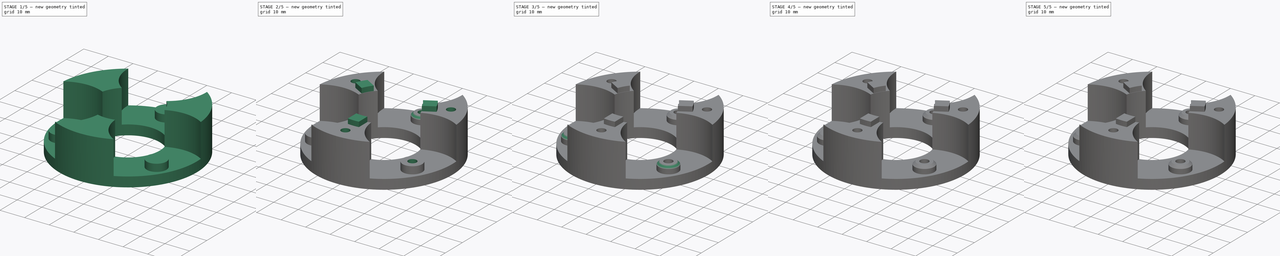
[diagram: build sequence overview — one tinted view per stage of 5, left to right]
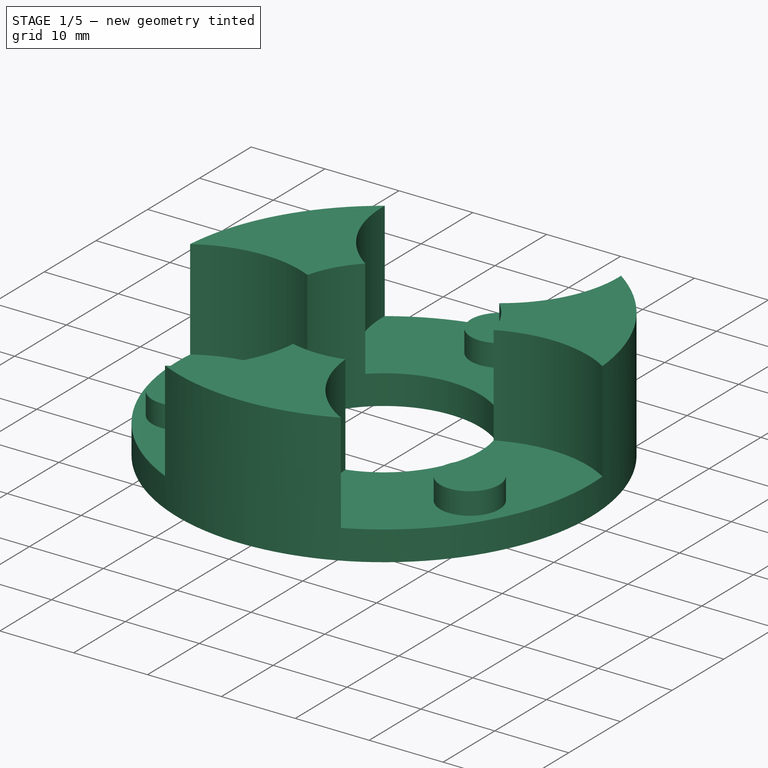
[diagram: stage 1 of 5 — iso view after this stage's code; geometry added in this stage tinted green]
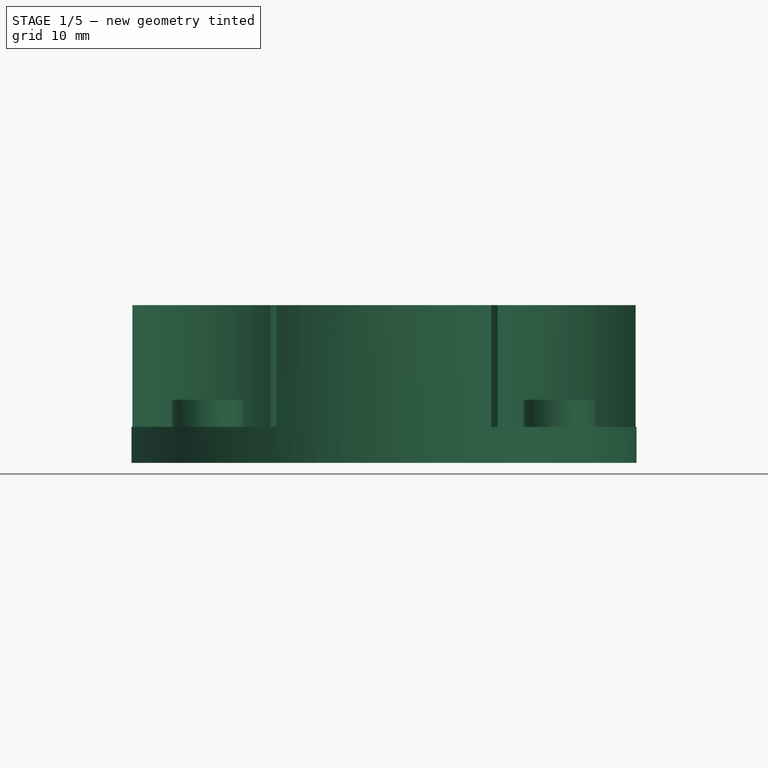
[diagram: stage 1 of 5 — front view after this stage's code; geometry added in this stage tinted green]
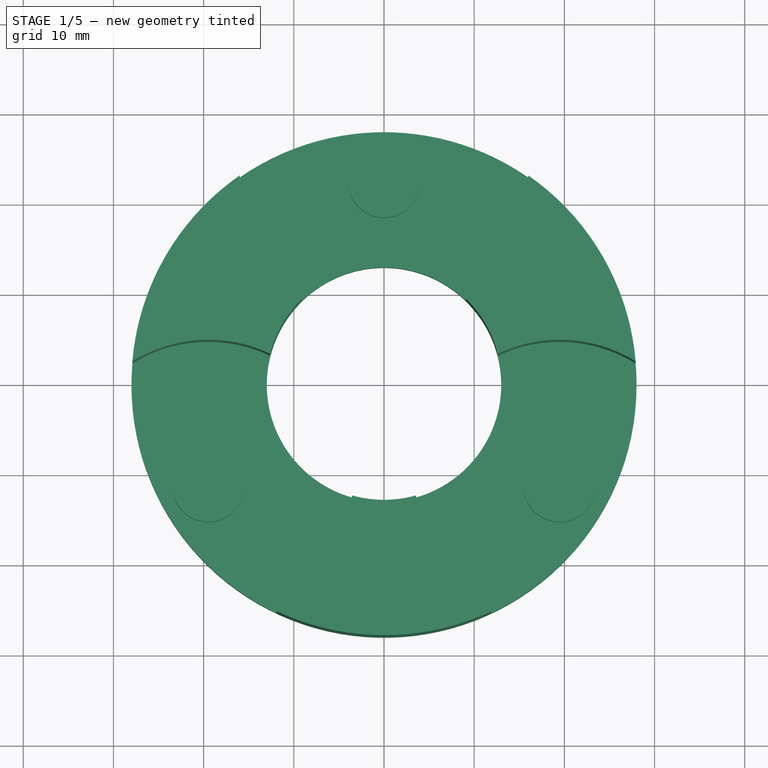
[diagram: stage 1 of 5 — top view after this stage's code; geometry added in this stage tinted green]
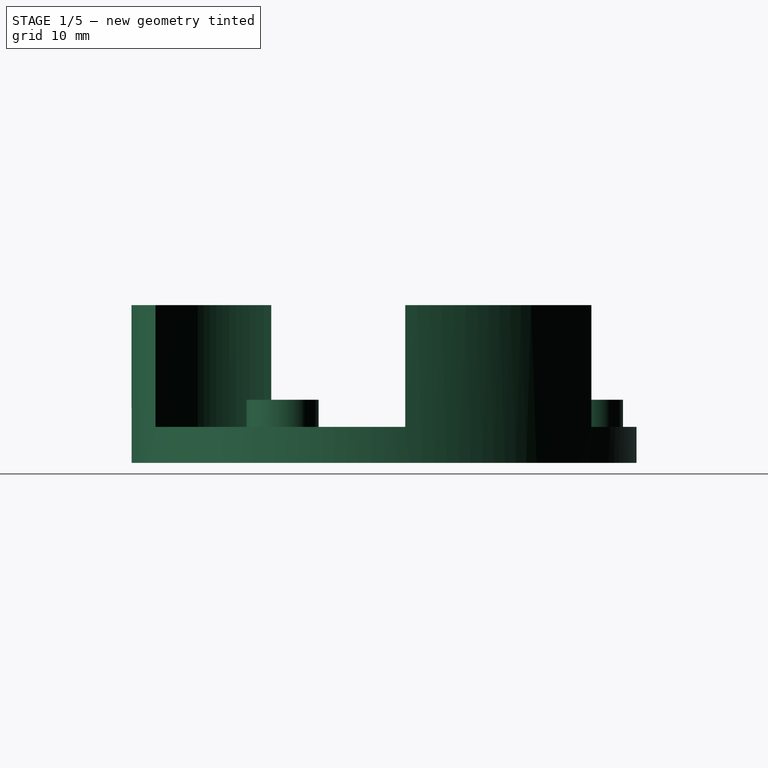
[diagram: stage 1 of 5 — right view after this stage's code; geometry added in this stage tinted green]
FCSTD DOCUMENT  (FreeCAD 0.16R6705 (Git))
Label: CarrierB
License: All rights reserved
LicenseURL: http://en.wikipedia.org/wiki/All_rights_reserved
objects: PartDesign::Chamfer×9, Sketcher::SketchObject×6, PartDesign::Pad×3, PartDesign::Pocket×3, PartDesign::PolarPattern×2
note: 29 computed .brp shape members not serialized (recipe doc carries the construction recipe); baked Part::Feature solids carry a one-line shape summary decoded from their .brp

FEATURE [Sketcher::SketchObject] Sketch005
  sketch-geometry (12):
    g0: Circle [constr] CenterX=0 CenterY=0 CenterZ=0 NormalX=0 NormalY=0 NormalZ=1 Radius=22.5
    g1: LineSegment [constr] StartX=0 StartY=0 StartZ=0 EndX=-19.4856 EndY=-11.25 EndZ=0
    g2: LineSegment [constr] StartX=0 StartY=0 StartZ=0 EndX=19.4856 EndY=-11.25 EndZ=0
    g3: LineSegment [constr] StartX=0 StartY=0 StartZ=0 EndX=0 EndY=22.5 EndZ=0
    g4: Circle [constr] CenterX=0 CenterY=22.5 CenterZ=0 NormalX=0 NormalY=0 NormalZ=1 Radius=1.6
    g5: Circle [constr] CenterX=-19.4856 CenterY=-11.25 CenterZ=0 NormalX=0 NormalY=0 NormalZ=1 Radius=1.6
    g6: Circle [constr] CenterX=19.4856 CenterY=-11.25 CenterZ=0 NormalX=0 NormalY=0 NormalZ=1 Radius=1.6
    g7: Circle CenterX=0 CenterY=0 CenterZ=0 NormalX=0 NormalY=0 NormalZ=1 Radius=13
    g8: Circle CenterX=0 CenterY=0 CenterZ=0 NormalX=0 NormalY=0 NormalZ=1 Radius=28
    g9: LineSegment [constr] StartX=0 StartY=0 StartZ=0 EndX=-24.2487 EndY=14 EndZ=0
    g10: LineSegment [constr] StartX=0 StartY=0 StartZ=0 EndX=24.2487 EndY=14 EndZ=0
    g11: LineSegment [constr] StartX=0 StartY=0 StartZ=0 EndX=0 EndY=-28 EndZ=0
  constraints (30):
    c: Coincident(g0,g-1)
    c: Radius(g0) = 22.5
    c: Coincident(g1,g-1)
    c: PointOnObject(g1,g0)
    c: Coincident(g2,g-1)
    c: PointOnObject(g2,g0)
    c: Angle(g1,g2) = 2.0944
    c: Coincident(g3,g-1)
    c: PointOnObject(g3,g0)
    c: Vertical(g3)
    c: Angle(g2,g3) = 2.0944
    c: Coincident(g4,g3)
    c: Coincident(g5,g1)
    c: Coincident(g6,g2)
    c: Coincident(g7,g-1)
    c: Radius(g6) = 1.6
    c: Equal(g6,g4)
    c: Equal(g6,g5)
    c: Radius(g7) = 13
    c: Radius(g8) = 28
    c: Coincident(g9,g-1)
    c: PointOnObject(g9,g8)
    c: Coincident(g8,g-1)
    c: Coincident(g10,g-1)
    c: PointOnObject(g10,g8)
    c: Coincident(g11,g-1)
    c: PointOnObject(g11,g8)
    c: Angle(g11,g10) = 2.0944
    c: Angle(g9,g11) = 2.0944
    c: Vertical(g11)
FEATURE [PartDesign::Pad] Pad002
  Length = 17.5
  Length2 = 100
  Sketch = -> Sketch005
  Type = 0
FEATURE [Sketcher::SketchObject] Sketch007  label="GearCutOut"
  Placement = pos=(0,0,17.5) rot=(0,0,1;0rad)
  Support = -> Pad002 [Face4]
  sketch-geometry (12):
    g0: Circle [constr] CenterX=0 CenterY=0 CenterZ=0 NormalX=0 NormalY=0 NormalZ=1 Radius=22.5
    g1: LineSegment [constr] StartX=0 StartY=0 StartZ=0 EndX=-19.4856 EndY=-11.25 EndZ=0
    g2: LineSegment [constr] StartX=0 StartY=0 StartZ=0 EndX=19.4856 EndY=-11.25 EndZ=0
    g3: LineSegment [constr] StartX=0 StartY=0 StartZ=0 EndX=0 EndY=22.5 EndZ=0
    g4: Circle CenterX=0 CenterY=22.5 CenterZ=0 NormalX=0 NormalY=0 NormalZ=1 Radius=16
    g5: Circle CenterX=-19.4856 CenterY=-11.25 CenterZ=0 NormalX=0 NormalY=0 NormalZ=1 Radius=16
    g6: Circle CenterX=19.4856 CenterY=-11.25 CenterZ=0 NormalX=0 NormalY=0 NormalZ=1 Radius=16
    g7: Circle [constr] CenterX=0 CenterY=0 CenterZ=0 NormalX=0 NormalY=0 NormalZ=1 Radius=14
    g8: Circle [constr] CenterX=0 CenterY=0 CenterZ=0 NormalX=0 NormalY=0 NormalZ=1 Radius=28
    g9: LineSegment [constr] StartX=0 StartY=0 StartZ=0 EndX=-24.2487 EndY=14 EndZ=0
    g10: LineSegment [constr] StartX=0 StartY=0 StartZ=0 EndX=24.2487 EndY=14 EndZ=0
    g11: LineSegment [constr] StartX=0 StartY=0 StartZ=0 EndX=0 EndY=-28 EndZ=0
  constraints (30):
    c: Coincident(g0,g-1)
    c: Radius(g0) = 22.5
    c: Coincident(g1,g-1)
    c: PointOnObject(g1,g0)
    c: Coincident(g2,g-1)
    c: PointOnObject(g2,g0)
    c: Angle(g1,g2) = 2.0944
    c: Coincident(g3,g-1)
    c: PointOnObject(g3,g0)
    c: Vertical(g3)
    c: Angle(g2,g3) = 2.0944
    c: Coincident(g4,g3)
    c: Coincident(g5,g1)
    c: Coincident(g6,g2)
    c: Coincident(g7,g-1)
    c: Radius(g6) = 16
    c: Equal(g6,g4)
    c: Equal(g6,g5)
    c: Radius(g7) = 14
    c: Radius(g8) = 28
    c: Coincident(g9,g-1)
    c: PointOnObject(g9,g8)
    c: Coincident(g8,g-1)
    c: Coincident(g10,g-1)
    c: PointOnObject(g10,g8)
    c: Coincident(g11,g-1)
    c: PointOnObject(g11,g8)
    c: Angle(g11,g10) = 2.0944
    c: Angle(g9,g11) = 2.0944
    c: Vertical(g11)
FEATURE [PartDesign::Pocket] Pocket003
  Length = 13.5
  Sketch = -> Sketch007
  Type = 0
FEATURE [Sketcher::SketchObject] Sketch006  label="BearingSupport"
  Placement = pos=(0,0,4) rot=(0,0,1;0rad)
  Support = -> Pocket003 [Face11]
  sketch-geometry (10):
    g0: Circle [constr] CenterX=0 CenterY=0 CenterZ=0 NormalX=0 NormalY=0 NormalZ=1 Radius=22.5
    g1: LineSegment [constr] StartX=0 StartY=0 StartZ=0 EndX=0 EndY=22.5 EndZ=0
    g2: LineSegment [constr] StartX=0 StartY=0 StartZ=0 EndX=-19.4856 EndY=-11.25 EndZ=0
    g3: LineSegment [constr] StartX=19.4856 StartY=-11.25 StartZ=0 EndX=0 EndY=0 EndZ=0
    g4: Circle CenterX=0 CenterY=22.5 CenterZ=0 NormalX=0 NormalY=0 NormalZ=1 Radius=4
    g5: Circle [constr] CenterX=0 CenterY=22.5 CenterZ=0 NormalX=0 NormalY=0 NormalZ=1 Radius=1.6
    g6: Circle CenterX=-19.4856 CenterY=-11.25 CenterZ=0 NormalX=0 NormalY=0 NormalZ=1 Radius=4
    g7: Circle [constr] CenterX=-19.4856 CenterY=-11.25 CenterZ=0 NormalX=0 NormalY=0 NormalZ=1 Radius=1.6
    g8: Circle [constr] CenterX=19.4856 CenterY=-11.25 CenterZ=0 NormalX=0 NormalY=0 NormalZ=1 Radius=1.6
    g9: Circle CenterX=19.4856 CenterY=-11.25 CenterZ=0 NormalX=0 NormalY=0 NormalZ=1 Radius=4
  constraints (23):
    c: Coincident(g0,g-1)
    c: Radius(g0) = 22.5
    c: Coincident(g1,g-1)
    c: Vertical(g1)
    c: PointOnObject(g2,g0)
    c: PointOnObject(g3,g0)
    c: Coincident(g3,g-1)
    c: Angle(g2,g3) = 2.0944
    c: Angle(g3,g1) = 2.0944
    c: Coincident(g4,g1)
    c: Coincident(g5,g1)
    c: Radius(g5) = 1.6
    c: Radius(g4) = 4
    c: Coincident(g6,g2)
    c: Radius(g6) = 4
    c: Coincident(g7,g2)
    c: Radius(g7) = 1.6
    c: Coincident(g8,g3)
    c: Radius(g8) = 1.6
    c: Coincident(g9,g3)
    c: Radius(g9) = 4
    c: PointOnObject(g1,g0)
    c: Coincident(g2,g-1)
FEATURE [PartDesign::Pad] Pad003
  Length = 3
  Length2 = 100
  Sketch = -> Sketch006
  Type = 0
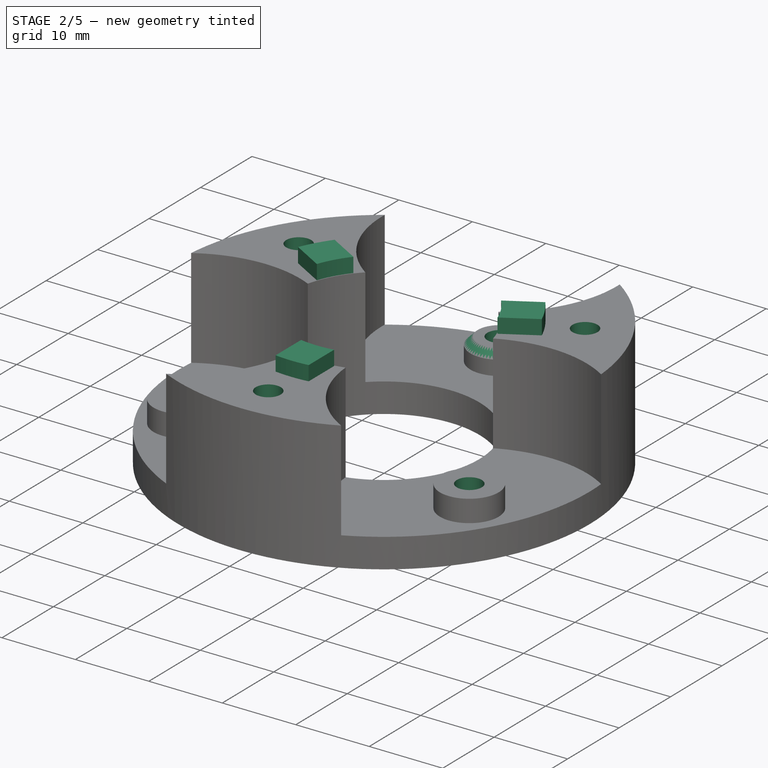
[diagram: stage 2 of 5 — iso view after this stage's code; geometry added in this stage tinted green]
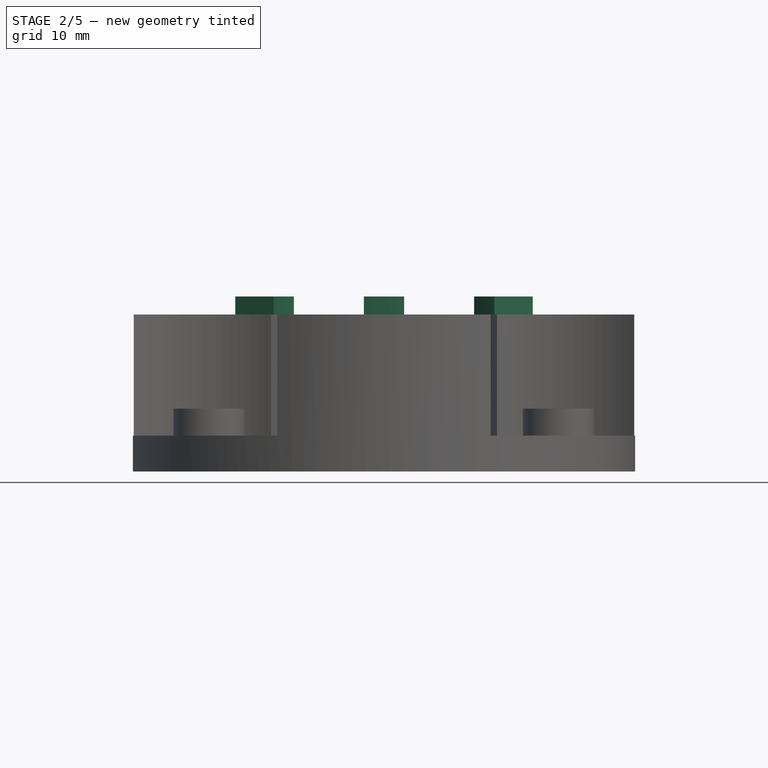
[diagram: stage 2 of 5 — front view after this stage's code; geometry added in this stage tinted green]
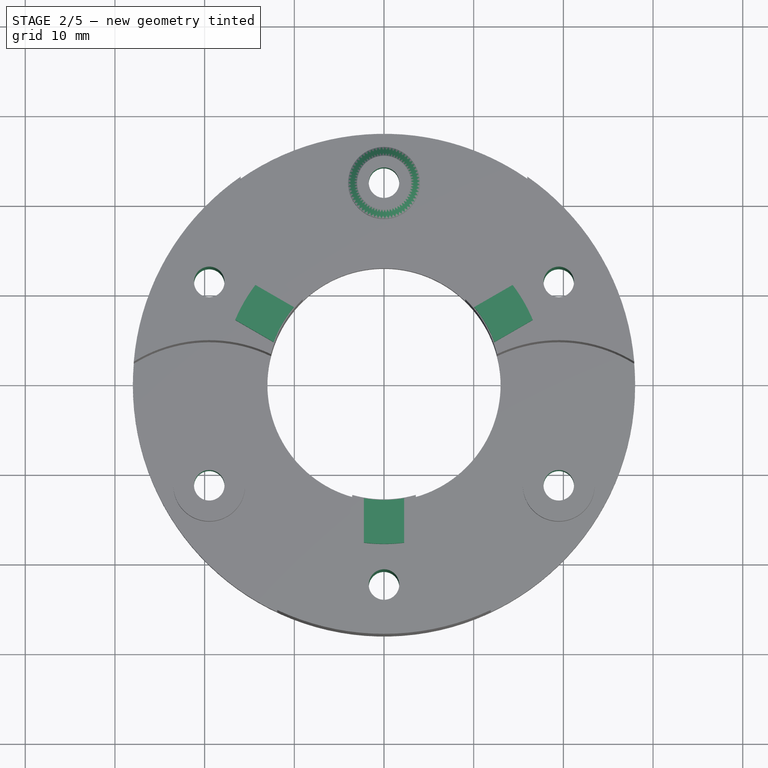
[diagram: stage 2 of 5 — top view after this stage's code; geometry added in this stage tinted green]
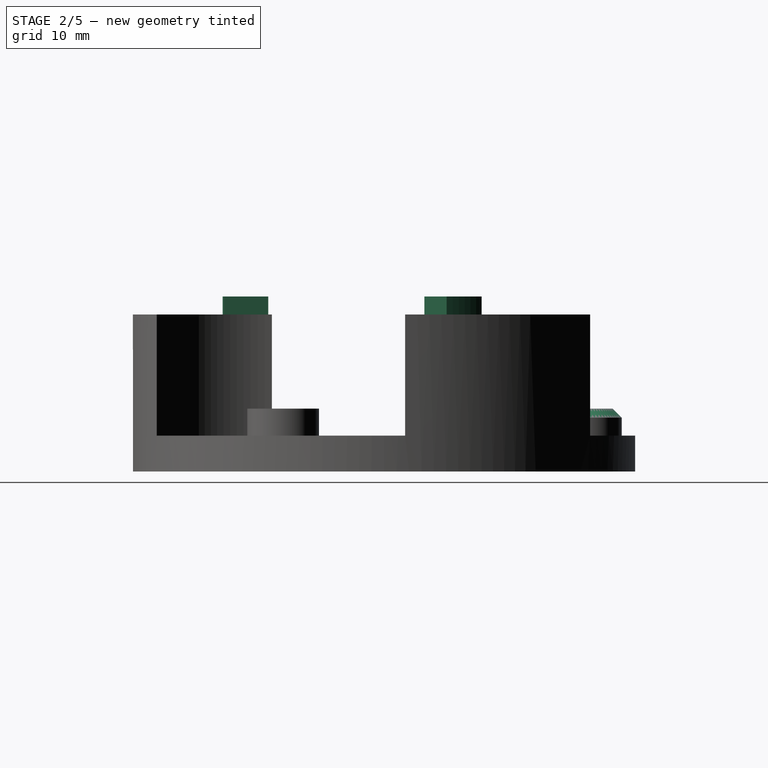
[diagram: stage 2 of 5 — right view after this stage's code; geometry added in this stage tinted green]
FEATURE [Sketcher::SketchObject] Sketch008  label="ScrewHoles"
  Placement = pos=(0,0,17.5) rot=(0,0,1;0rad)
  Support = -> Pad003 [Face9]
  sketch-geometry (18):
    g0: Circle [constr] CenterX=0 CenterY=0 CenterZ=0 NormalX=0 NormalY=0 NormalZ=1 Radius=22.5
    g1: LineSegment [constr] StartX=0 StartY=0 StartZ=0 EndX=-19.4856 EndY=-11.25 EndZ=0
    g2: LineSegment [constr] StartX=0 StartY=0 StartZ=0 EndX=19.4856 EndY=-11.25 EndZ=0
    g3: LineSegment [constr] StartX=0 StartY=0 StartZ=0 EndX=0 EndY=22.5 EndZ=0
    g4: Circle CenterX=0 CenterY=22.5 CenterZ=0 NormalX=0 NormalY=0 NormalZ=1 Radius=1.7
    g5: Circle CenterX=-19.4856 CenterY=-11.25 CenterZ=0 NormalX=0 NormalY=0 NormalZ=1 Radius=1.7
    g6: Circle CenterX=19.4856 CenterY=-11.25 CenterZ=0 NormalX=0 NormalY=0 NormalZ=1 Radius=1.7
    g7: Circle [constr] CenterX=0 CenterY=0 CenterZ=0 NormalX=0 NormalY=0 NormalZ=1 Radius=14
    g8: Circle [constr] CenterX=0 CenterY=0 CenterZ=0 NormalX=0 NormalY=0 NormalZ=1 Radius=28
    g9: LineSegment [constr] StartX=0 StartY=0 StartZ=0 EndX=-24.2487 EndY=14 EndZ=0
    g10: LineSegment [constr] StartX=0 StartY=0 StartZ=0 EndX=24.2487 EndY=14 EndZ=0
    g11: LineSegment [constr] StartX=0 StartY=0 StartZ=0 EndX=0 EndY=-28 EndZ=0
    g12: GeomPoint [constr] X=-19.4856 Y=11.25 Z=0
    g13: GeomPoint [constr] X=19.4856 Y=11.25 Z=0
    g14: GeomPoint [constr] X=0 Y=-22.5 Z=0
    g15: Circle CenterX=-19.4856 CenterY=11.25 CenterZ=0 NormalX=0 NormalY=0 NormalZ=1 Radius=1.7
    g16: Circle CenterX=19.4856 CenterY=11.25 CenterZ=0 NormalX=0 NormalY=0 NormalZ=1 Radius=1.7
    g17: Circle CenterX=0 CenterY=-22.5 CenterZ=0 NormalX=0 NormalY=0 NormalZ=1 Radius=1.7
  constraints (42):
    c: Coincident(g0,g-1)
    c: Radius(g0) = 22.5
    c: Coincident(g1,g-1)
    c: PointOnObject(g1,g0)
    c: Coincident(g2,g-1)
    c: PointOnObject(g2,g0)
    c: Angle(g1,g2) = 2.0944
    c: Coincident(g3,g-1)
    c: PointOnObject(g3,g0)
    c: Vertical(g3)
    c: Angle(g2,g3) = 2.0944
    c: Coincident(g4,g3)
    c: Coincident(g5,g1)
    c: Coincident(g6,g2)
    c: Coincident(g7,g-1)
    c: Radius(g6) = 1.7
    c: Equal(g6,g4)
    c: Equal(g6,g5)
    c: Radius(g7) = 14
    c: Radius(g8) = 28
    c: Coincident(g9,g-1)
    c: PointOnObject(g9,g8)
    c: Coincident(g8,g-1)
    c: Coincident(g10,g-1)
    c: PointOnObject(g10,g8)
    c: Coincident(g11,g-1)
    c: PointOnObject(g11,g8)
    c: Angle(g11,g10) = 2.0944
    c: Angle(g9,g11) = 2.0944
    c: Vertical(g11)
    c: PointOnObject(g12,g0)
    c: PointOnObject(g12,g9)
    c: PointOnObject(g13,g0)
    c: PointOnObject(g13,g10)
    c: PointOnObject(g14,g0)
    c: PointOnObject(g14,g11)
    c: Coincident(g15,g12)
    c: Coincident(g16,g13)
    c: Coincident(g17,g14)
    c: Radius(g17) = 1.7
    c: Equal(g17,g16)
    c: Equal(g17,g15)
FEATURE [PartDesign::Pocket] Pocket004
  Length = 12.4
  Sketch = -> Sketch008
  Type = 1
FEATURE [Sketcher::SketchObject] Sketch009  label="Lock"
  Placement = pos=(0,0,17.5) rot=(0,0,1;0rad)
  Support = -> Pocket004 [Face9]
  sketch-geometry (4):
    g0: LineSegment StartX=-2.25 StartY=-12.9053 StartZ=0 EndX=-2.25 EndY=-17.8588 EndZ=0
    g1: LineSegment StartX=2.25 StartY=-12.9053 StartZ=0 EndX=2.25 EndY=-17.8588 EndZ=0
    g2: ArcOfCircle CenterX=0 CenterY=0 CenterZ=0 NormalX=0 NormalY=0 NormalZ=1 Radius=13.1 StartAngle=4.53978 EndAngle=4.885
    g3: ArcOfCircle CenterX=0 CenterY=0 CenterZ=0 NormalX=0 NormalY=0 NormalZ=1 Radius=18 StartAngle=4.58706 EndAngle=4.83772
  constraints (12):
    c: Vertical(g0)
    c: Vertical(g1)
    c: Coincident(g2,g-1)
    c: Coincident(g2,g1)
    c: Coincident(g2,g0)
    c: Coincident(g3,g-1)
    c: Coincident(g3,g1)
    c: Coincident(g3,g0)
    c: Symmetric(g1,g0,g-2)
    c: DistanceX(g0,g1) = 4.5
    c: Radius(g2) = 13.1
    c: Radius(g3) = 18
FEATURE [PartDesign::Pad] Pad
  Length = 2
  Length2 = 100
  Sketch = -> Sketch009
  Type = 0
FEATURE [PartDesign::PolarPattern] PolarPattern  label="FinalBeforeChamfer"
  Angle = 360
  Axis = -> Sketch009 [N_Axis]
  Occurrences = 3
  Originals = -> [Pad]
FEATURE [PartDesign::Chamfer] Chamfer
  Base = -> PolarPattern [Edge99]
  Size = 1
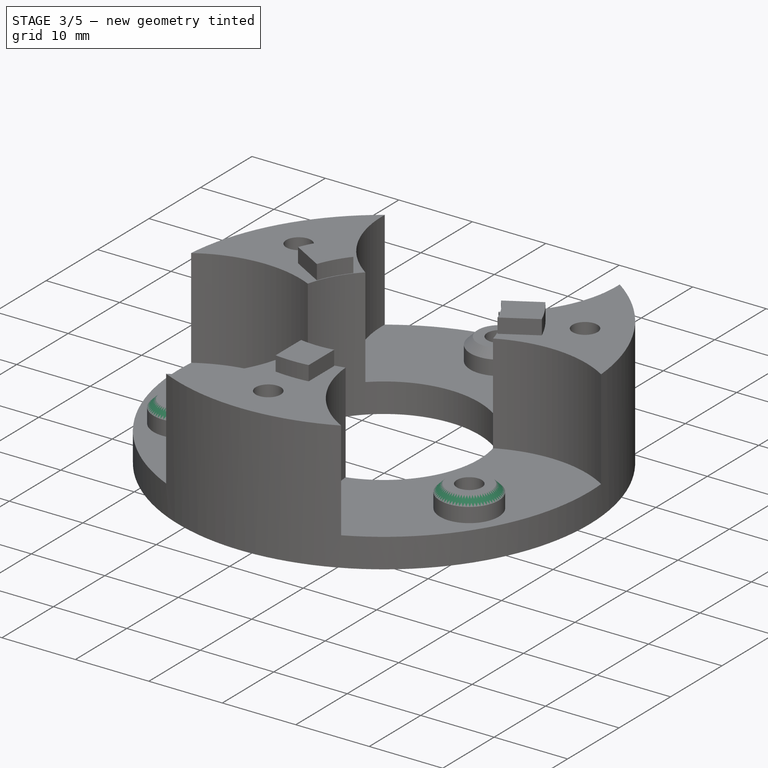
[diagram: stage 3 of 5 — iso view after this stage's code; geometry added in this stage tinted green]
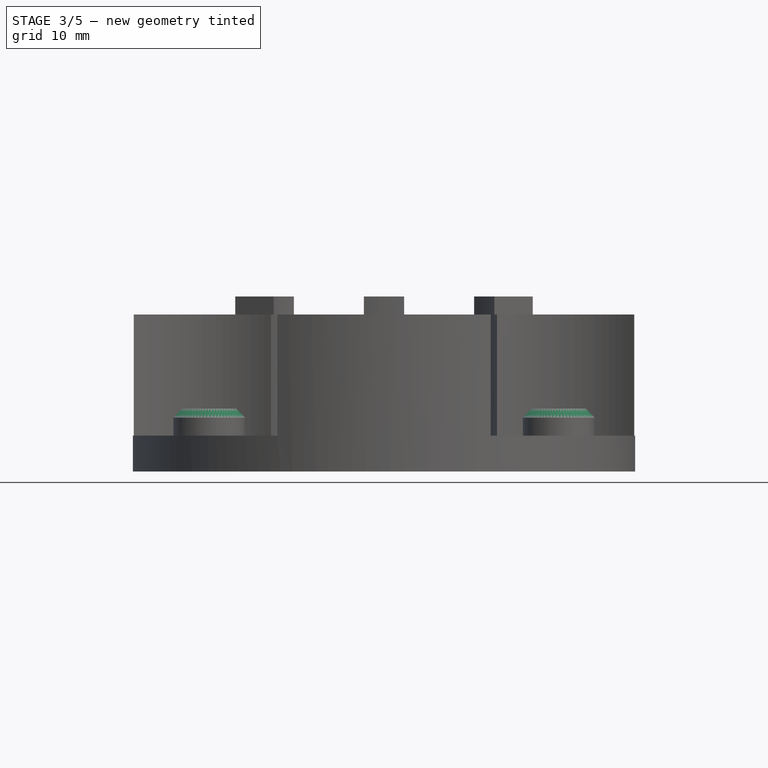
[diagram: stage 3 of 5 — front view after this stage's code; geometry added in this stage tinted green]
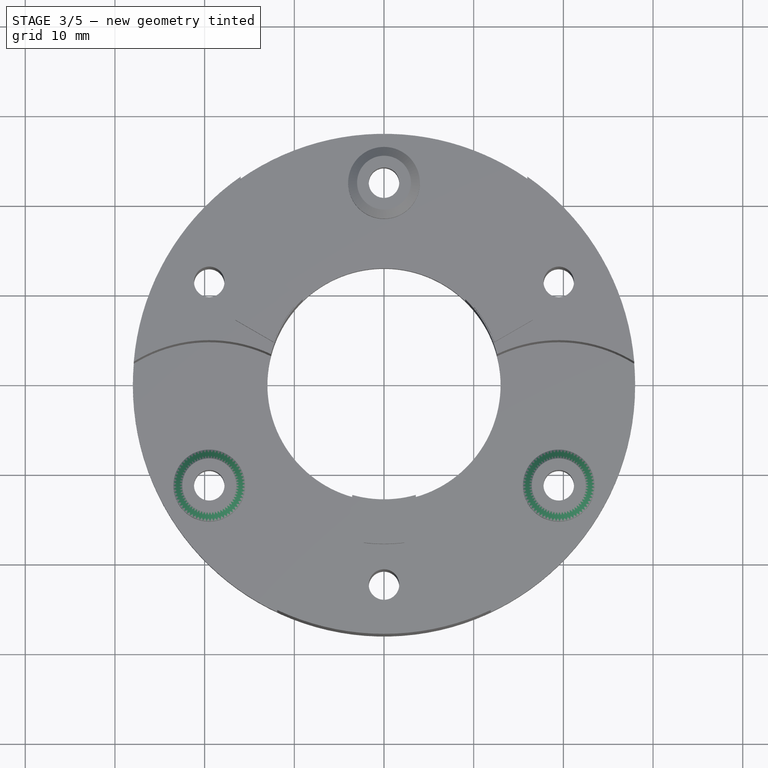
[diagram: stage 3 of 5 — top view after this stage's code; geometry added in this stage tinted green]
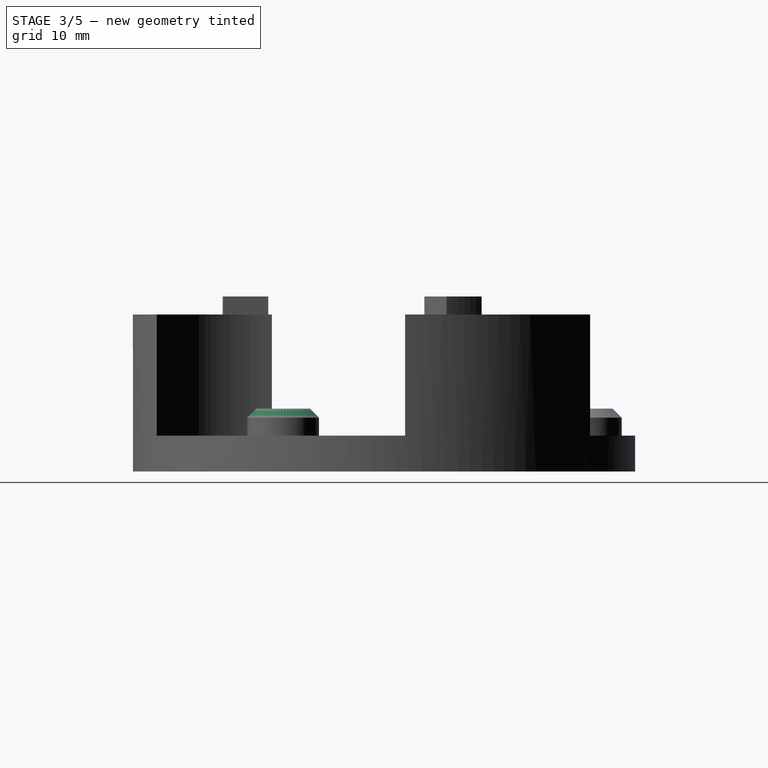
[diagram: stage 3 of 5 — right view after this stage's code; geometry added in this stage tinted green]
FEATURE [PartDesign::Chamfer] Chamfer001
  Base = -> Chamfer [Edge101]
  Size = 1
FEATURE [PartDesign::Chamfer] Chamfer002
  Base = -> Chamfer001 [Edge91]
  Size = 1
FEATURE [Sketcher::SketchObject] Sketch
  Placement = pos=(0,0,0) rot=(1,0,0;3.14159rad)
  Support = -> Chamfer002 [Face11]
  sketch-geometry (1):
    g0: Circle CenterX=0 CenterY=22.5 CenterZ=0 NormalX=0 NormalY=0 NormalZ=1 Radius=3.5
  constraints (3):
    c: PointOnObject(g0,g-2)
    c: Radius(g0) = 3.5
    c: DistanceY(g-1,g0) = 22.5
FEATURE [PartDesign::Pocket] Pocket
  Length = 1.5
  Sketch = -> Sketch
  Type = 0
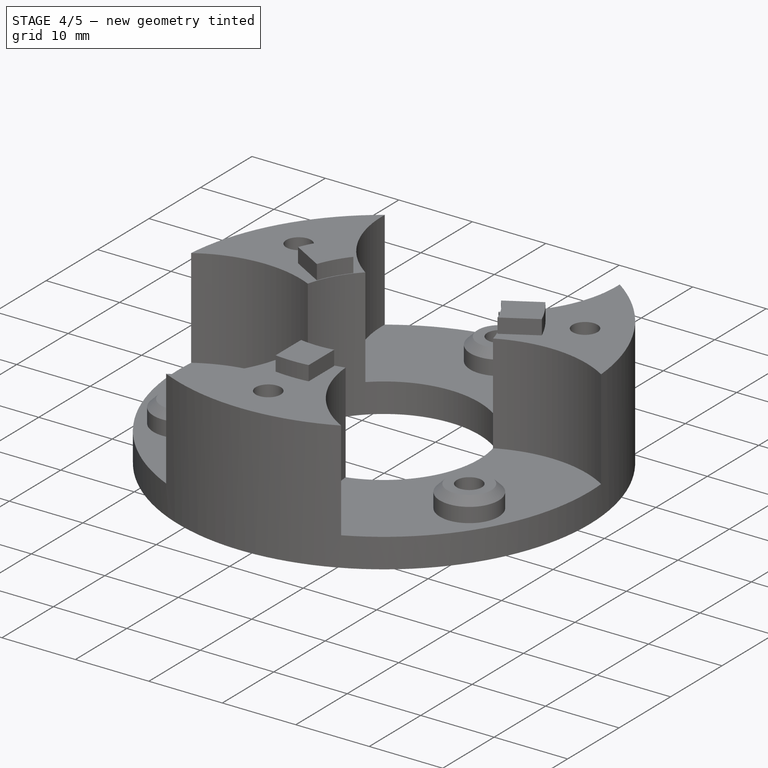
[diagram: stage 4 of 5 — iso view after this stage's code; geometry added in this stage tinted green]
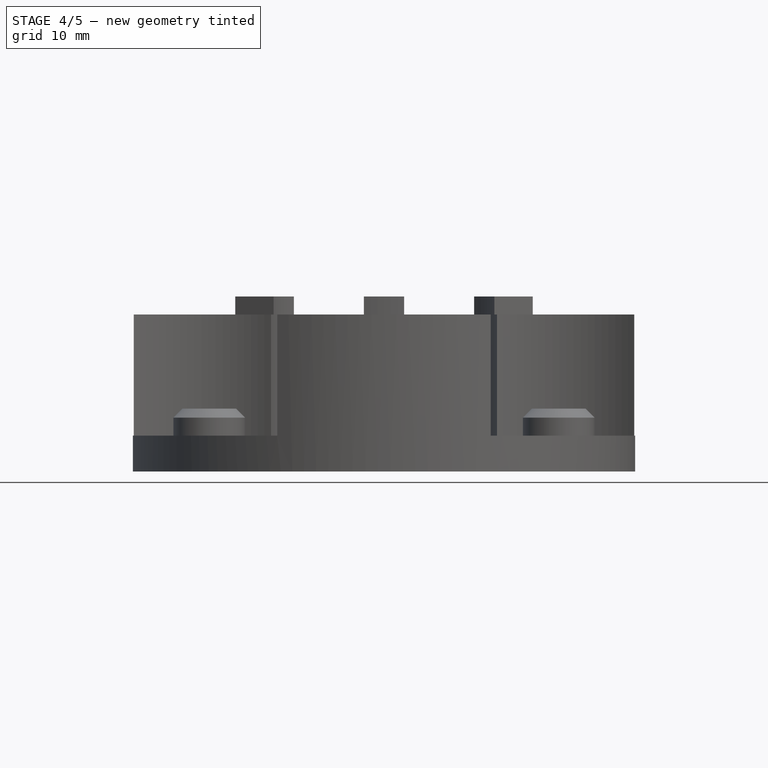
[diagram: stage 4 of 5 — front view after this stage's code; geometry added in this stage tinted green]
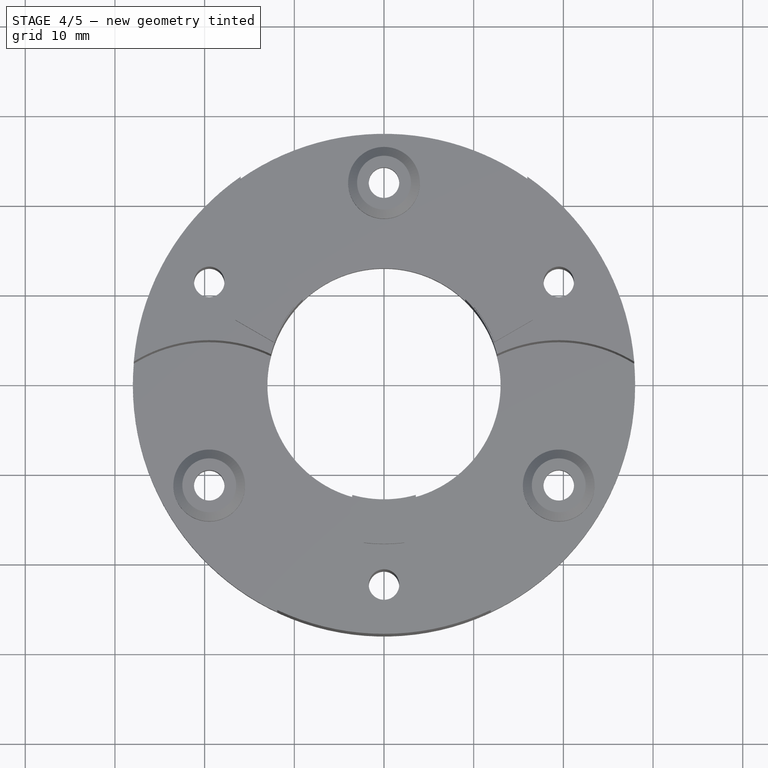
[diagram: stage 4 of 5 — top view after this stage's code; geometry added in this stage tinted green]
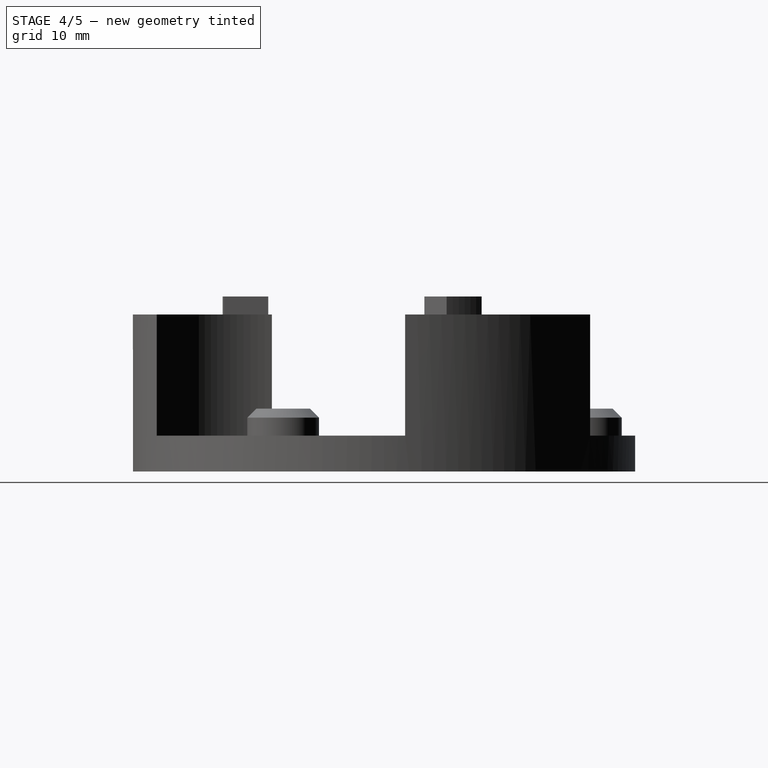
[diagram: stage 4 of 5 — right view after this stage's code; geometry added in this stage tinted green]
FEATURE [PartDesign::PolarPattern] PolarPattern001
  Angle = 360
  Axis = -> Sketch [N_Axis]
  Occurrences = 6
  Originals = -> [Pocket]
FEATURE [PartDesign::Chamfer] Chamfer003
  Base = -> PolarPattern001 [Edge123]
  Size = 1.5
FEATURE [PartDesign::Chamfer] Chamfer004
  Base = -> Chamfer003 [Edge92]
  Size = 1.5
FEATURE [PartDesign::Chamfer] Chamfer005
  Base = -> Chamfer004 [Edge94]
  Size = 1.5
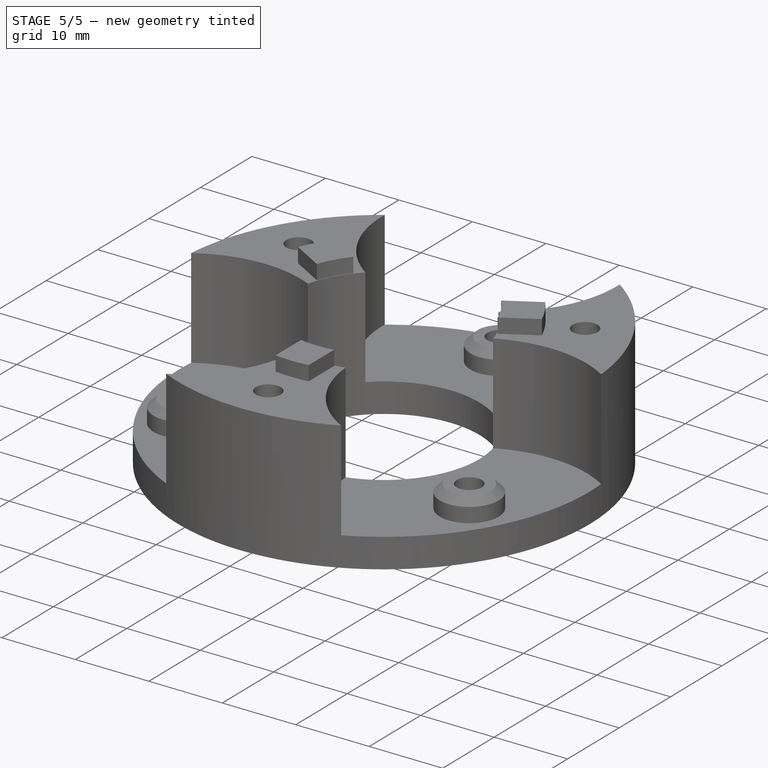
[diagram: stage 5 of 5 — iso view after this stage's code; geometry added in this stage tinted green]
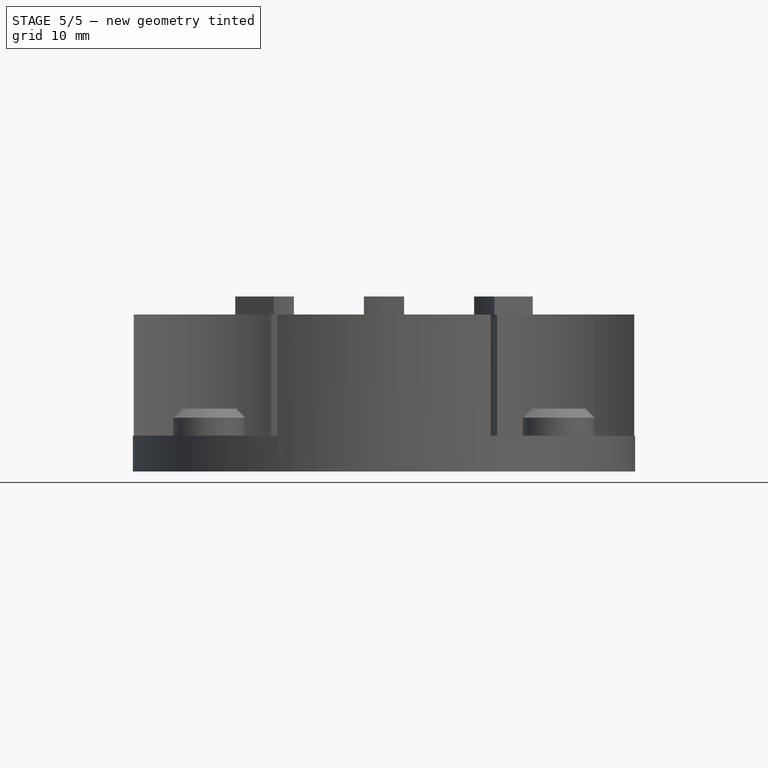
[diagram: stage 5 of 5 — front view after this stage's code; geometry added in this stage tinted green]
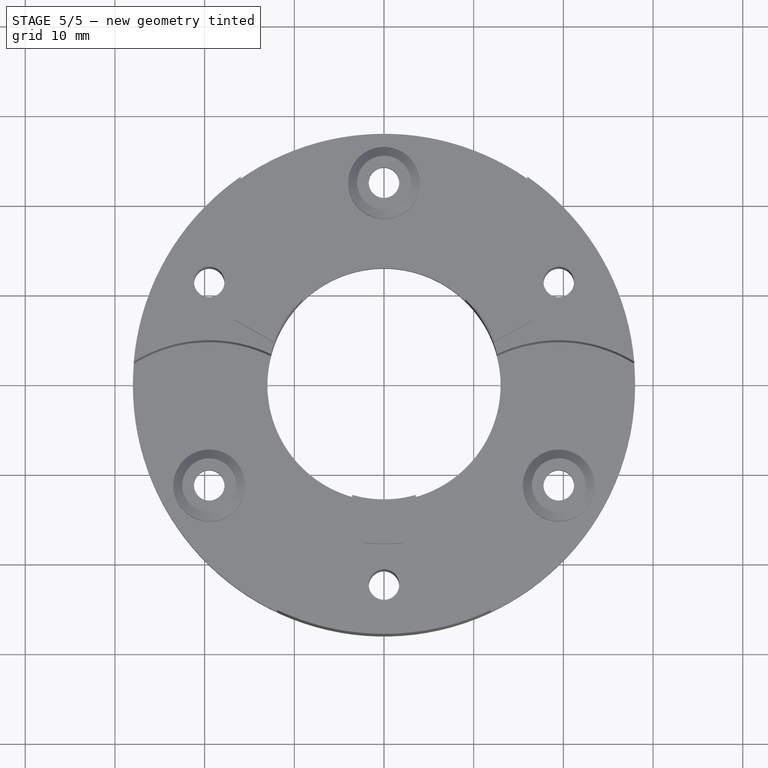
[diagram: stage 5 of 5 — top view after this stage's code; geometry added in this stage tinted green]
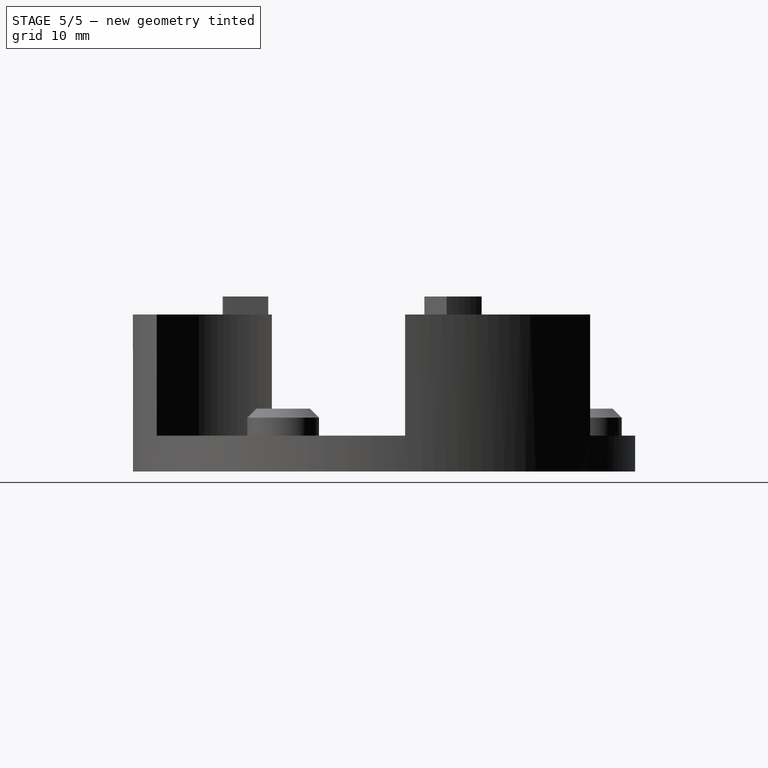
[diagram: stage 5 of 5 — right view after this stage's code; geometry added in this stage tinted green]
FEATURE [PartDesign::Chamfer] Chamfer006
  Base = -> Chamfer005 [Edge89]
  Size = 1.5
FEATURE [PartDesign::Chamfer] Chamfer007
  Base = -> Chamfer006 [Edge94]
  Size = 1.5
FEATURE [PartDesign::Chamfer] Chamfer008
  Base = -> Chamfer007 [Edge93]
  Size = 1.5
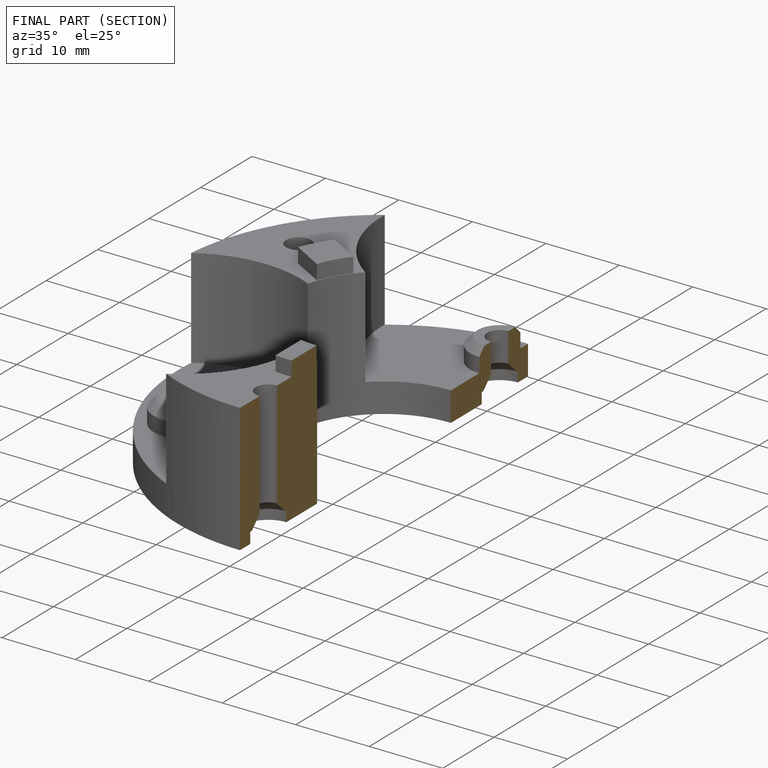
[diagram: finished part — half-section view (interior)]
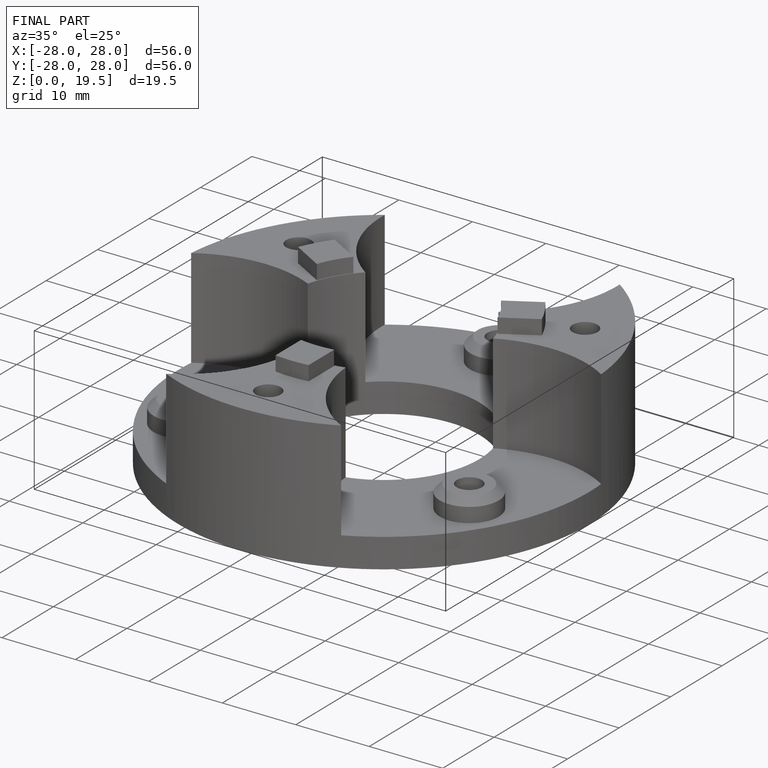
[diagram: finished part — iso view with bounding-box wireframe]
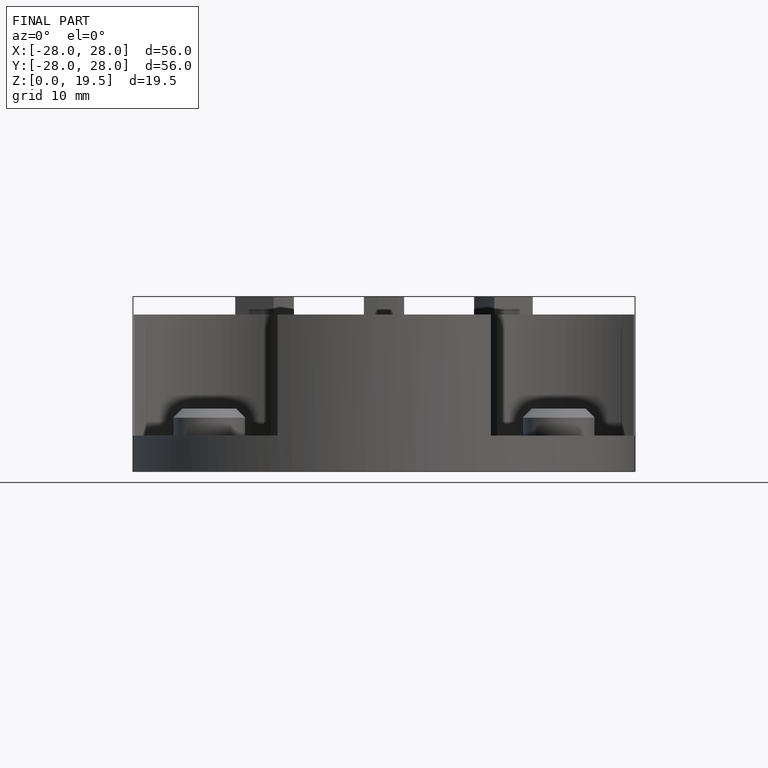
[diagram: finished part — front view with bounding-box wireframe]
